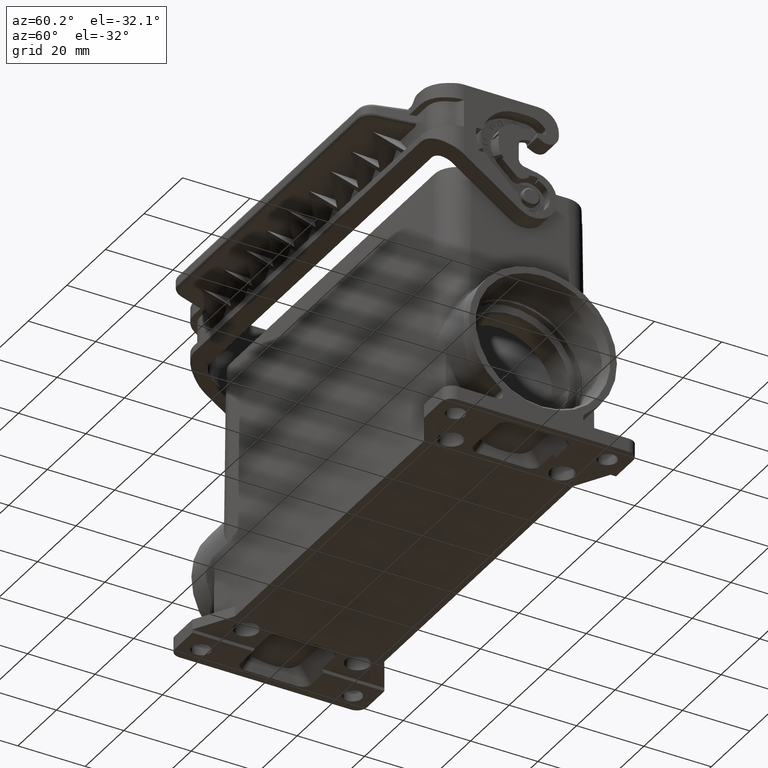
[diagram: clean part render]
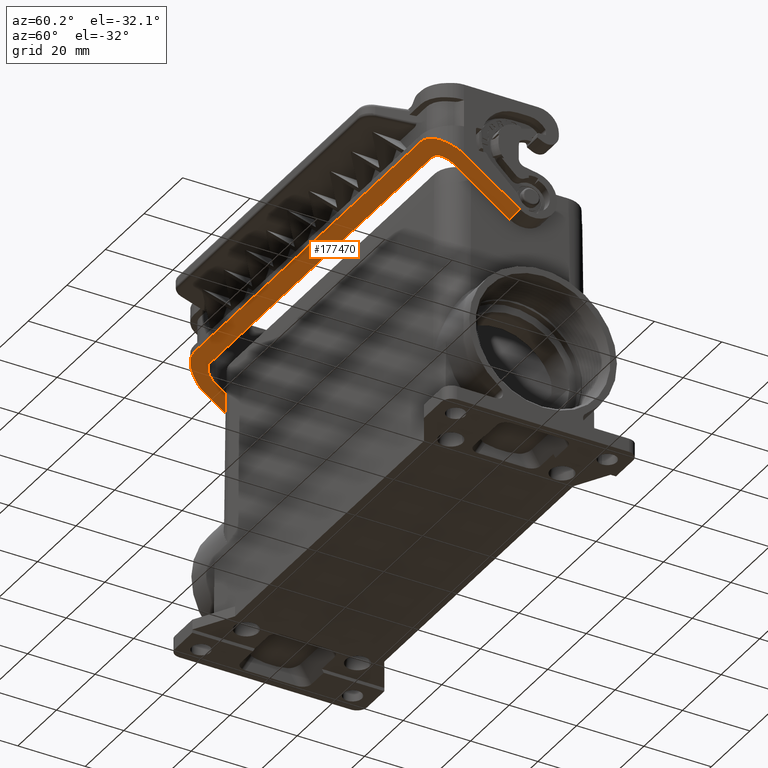
[diagram: same view with one face highlighted and labeled with its STEP entity id]
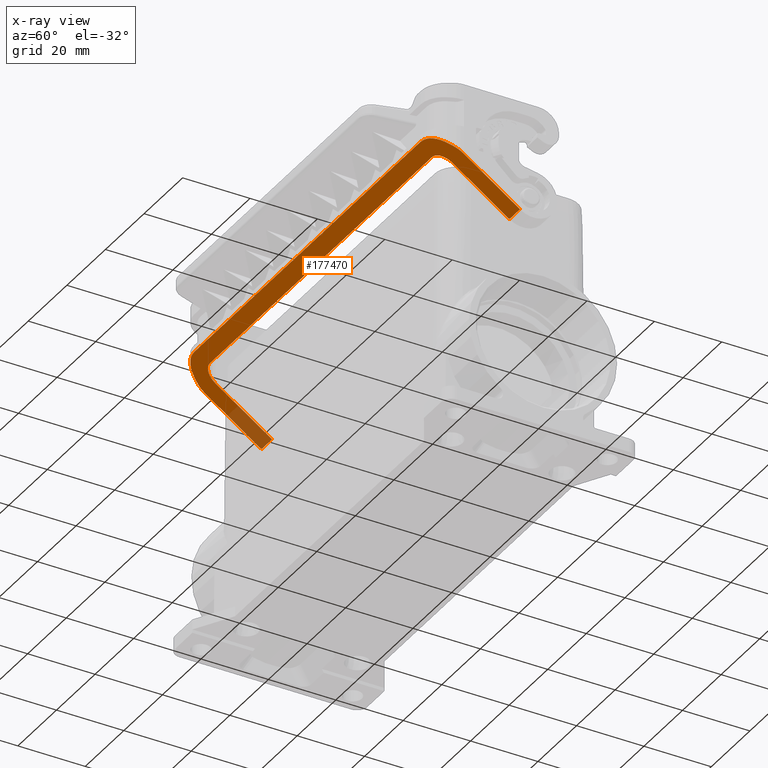
[diagram: x-ray of the same camera — body ghosted, the highlighted face saturated]
A machine part, auxiliary view. The second image highlights one B-rep face of the part: STEP entity #177470.
The next image is the same camera in x-ray: the body ghosted, the highlighted face saturated — about 8% of this face is hidden behind the body in this view.
In plain terms, the highlighted planar face has unit normal (-0, 0.5736, 0.8192).
Its self-contained STEP definition (entity closure, byte-faithful):
#33460=CARTESIAN_POINT('',(-1.18142200000013,44.1780974249612,
66.2659356899762));
#33470=VERTEX_POINT('',#33460);
#33500=CARTESIAN_POINT('',(-6.68142200000034,44.1780974249613,
66.2659356899763));
#33510=DIRECTION('',(1.,1.86243165512249E-16,1.90949043772848E-15));
#33520=VECTOR('',#33510,1.);
#33530=LINE('',#33500,#33520);
#33540=CARTESIAN_POINT('',(-6.68142200000013,44.1780974249612,
66.2659356899762));
#33550=VERTEX_POINT('',#33540);
#33560=EDGE_CURVE('',#33550,#33470,#33530,.T.);
#174630=CARTESIAN_POINT('',(-1.18142200000013,60.9130623705898,
77.9838842965775));
#174640=VERTEX_POINT('',#174630);
#174670=CARTESIAN_POINT('',(-1.18142200000041,-294.199861611934,
-170.668861991618));
#174680=DIRECTION('',(-6.11823375964389E-16,-0.819152044289056,
-0.573576436350954));
#174690=VECTOR('',#174680,1.);
#174700=LINE('',#174670,#174690);
#174710=EDGE_CURVE('',#174640,#33470,#174700,.T.);
#176220=CARTESIAN_POINT('',(58.5685780000001,44.1780974249612,
66.2659356899758));
#176230=DIRECTION('',(5.88254034551026E-16,-0.573576436350954,
0.819152044289056));
#176240=DIRECTION('',(-6.39260833162635E-16,-0.819152044289056,
-0.573576436350954));
#176250=AXIS2_PLACEMENT_3D('',#176220,#176230,#176240);
#176260=PLANE('',#176250);
#176270=CARTESIAN_POINT('',(-0.681422000000126,60.8053672160031,
77.9084753375072));
#176280=DIRECTION('',(5.88254034551026E-16,-0.573576436350954,
0.819152044289056));
#176290=DIRECTION('',(-6.39260833162634E-16,-0.819152044289056,
-0.573576436350954));
#176300=AXIS2_PLACEMENT_3D('',#176270,#176280,#176290);
#176310=ELLIPSE('',#176300,7.32464753256817,6.);
#176320=CARTESIAN_POINT('',(-5.87757442270676,63.8053672160031,
80.0090979521358));
#176330=VERTEX_POINT('',#176320);
#176340=CARTESIAN_POINT('',(-6.68142200000013,60.8053672160031,
77.9084753375072));
#176350=VERTEX_POINT('',#176340);
#176360=EDGE_CURVE('',#176330,#176350,#176310,.T.);
#176370=ORIENTED_EDGE('',*,*,#176360,.F.);
#176380=CARTESIAN_POINT('',(-6.68142200000042,-294.199861611934,
-170.668861991618));
#176390=DIRECTION('',(-6.39260833162635E-16,-0.819152044289056,
-0.573576436350954));
#176400=VECTOR('',#176390,1.);
#176410=LINE('',#176380,#176400);
#176420=EDGE_CURVE('',#176350,#33550,#176410,.T.);
#176430=ORIENTED_EDGE('',*,*,#176420,.F.);
#176440=ORIENTED_EDGE('',*,*,#33560,.F.);
#176450=ORIENTED_EDGE('',*,*,#174710,.T.);
#176460=CARTESIAN_POINT('',(2.81857799999987,60.91306237059,
77.9838842965775));
#176470=DIRECTION('',(5.88254034551026E-16,-0.573576436350954,
0.819152044289056));
#176480=DIRECTION('',(-6.39260833162606E-16,-0.819152044289056,
-0.573576436350954));
#176490=AXIS2_PLACEMENT_3D('',#176460,#176470,#176480);
#176500=ELLIPSE('',#176490,4.88309835504543,4.);
#176510=CARTESIAN_POINT('',(2.81857799999987,64.91306237059,
80.7847144494157));
#176520=VERTEX_POINT('',#176510);
#176530=EDGE_CURVE('',#176520,#174640,#176500,.T.);
#176540=ORIENTED_EDGE('',*,*,#176530,.T.);
#176550=CARTESIAN_POINT('',(116.068578,64.91306237059,80.7847144494156))
;
#176560=DIRECTION('',(-1.,-6.65601388780229E-31,7.18125577116239E-16));
#176570=VECTOR('',#176560,1.);
#176580=LINE('',#176550,#176570);
#176590=CARTESIAN_POINT('',(117.818578,64.91306237059,80.7847144494156))
;
#176600=VERTEX_POINT('',#176590);
#176610=EDGE_CURVE('',#176600,#176520,#176580,.T.);
#176620=ORIENTED_EDGE('',*,*,#176610,.T.);
#176630=CARTESIAN_POINT('',(117.818578,60.91306237059,77.9838842965775))
;
#176640=DIRECTION('',(5.88254034551026E-16,-0.573576436350954,
0.819152044289056));
#176650=DIRECTION('',(4.16920881182962E-15,-0.819152044289056,
-0.573576436350954));
#176660=AXIS2_PLACEMENT_3D('',#176630,#176640,#176650);
#176670=ELLIPSE('',#176660,4.88309835504543,4.);
#176680=CARTESIAN_POINT('',(121.818578,60.9130623705899,77.9838842965774
));
#176690=VERTEX_POINT('',#176680);
#176700=EDGE_CURVE('',#176690,#176600,#176670,.T.);
#176710=ORIENTED_EDGE('',*,*,#176700,.T.);
#176720=CARTESIAN_POINT('',(121.818578000001,-294.199861611934,
-170.668861991618));
#176730=DIRECTION('',(1.2203627330845E-15,-0.819152044289056,
-0.573576436350954));
#176740=VECTOR('',#176730,1.);
#176750=LINE('',#176720,#176740);
#176760=CARTESIAN_POINT('',(121.818578,44.1780974249614,66.2659356899764
));
#176770=VERTEX_POINT('',#176760);
#176780=EDGE_CURVE('',#176690,#176770,#176750,.T.);
#176790=ORIENTED_EDGE('',*,*,#176780,.F.);
#176800=CARTESIAN_POINT('',(127.318578,44.1780974249614,66.2659356899764
));
#176810=DIRECTION('',(-1.,1.86243165512253E-16,8.48534445547924E-16));
#176820=VECTOR('',#176810,1.);
#176830=LINE('',#176800,#176820);
#176840=CARTESIAN_POINT('',(127.318578,44.1780974249614,66.2659356899763
));
#176850=VERTEX_POINT('',#176840);
#176860=EDGE_CURVE('',#176850,#176770,#176830,.T.);
#176870=ORIENTED_EDGE('',*,*,#176860,.T.);
#176880=CARTESIAN_POINT('',(127.318578000001,-294.199861611934,
-170.668861991618));
#176890=DIRECTION('',(1.2203627330845E-15,-0.819152044289056,
-0.573576436350954));
#176900=VECTOR('',#176890,1.);
#176910=LINE('',#176880,#176900);
#176920=CARTESIAN_POINT('',(127.318578,60.8053672160031,77.9084753375071
));
#176930=VERTEX_POINT('',#176920);
#176940=EDGE_CURVE('',#176930,#176850,#176910,.T.);
#176950=ORIENTED_EDGE('',*,*,#176940,.T.);
#176960=CARTESIAN_POINT('',(121.318578,60.8053672160031,77.9084753375071
));
#176970=DIRECTION('',(5.88254034551026E-16,-0.573576436350954,
0.819152044289056));
#176980=DIRECTION('',(4.16920881182962E-15,-0.819152044289056,
-0.573576436350954));
#176990=AXIS2_PLACEMENT_3D('',#176960,#176970,#176980);
#177000=ELLIPSE('',#176990,7.32464753256817,6.);
#177010=CARTESIAN_POINT('',(126.514730422707,63.8053672160032,
80.0090979521358));
#177020=VERTEX_POINT('',#177010);
#177030=EDGE_CURVE('',#176930,#177020,#177000,.T.);
#177040=ORIENTED_EDGE('',*,*,#177030,.F.);
#177050=CARTESIAN_POINT('',(333.20914565781,-294.199861611934,
-170.668861991618));
#177060=DIRECTION('',(-0.427535056636465,0.740512440111194,
0.518512392703801));
#177070=VECTOR('',#177060,1.);
#177080=LINE('',#177050,#177070);
#177090=CARTESIAN_POINT('',(125.875202327026,64.91306237059,
80.7847144494158));
#177100=VERTEX_POINT('',#177090);
#177110=EDGE_CURVE('',#177020,#177100,#177080,.T.);
#177120=ORIENTED_EDGE('',*,*,#177110,.F.);
#177130=CARTESIAN_POINT('',(118.94699909675,60.91306237059,
77.9838842965775));
#177140=DIRECTION('',(5.88254034551026E-16,-0.573576436350954,
0.819152044289056));
#177150=DIRECTION('',(-6.39260833162639E-16,-0.819152044289056,
-0.573576436350954));
#177160=AXIS2_PLACEMENT_3D('',#177130,#177140,#177150);
#177170=ELLIPSE('',#177160,9.76619671009087,8.);
#177180=CARTESIAN_POINT('',(118.94699909675,68.91306237059,
83.5855446022538));
#177190=VERTEX_POINT('',#177180);
#177200=EDGE_CURVE('',#177100,#177190,#177170,.T.);
#177210=ORIENTED_EDGE('',*,*,#177200,.F.);
#177220=CARTESIAN_POINT('',(116.068578,68.91306237059,83.5855446022538))
;
#177230=DIRECTION('',(-1.,-7.14905195356542E-31,7.18125577116239E-16));
#177240=VECTOR('',#177230,1.);
#177250=LINE('',#177220,#177240);
#177260=CARTESIAN_POINT('',(1.6901569032495,68.9130623705899,
83.5855446022539));
#177270=VERTEX_POINT('',#177260);
#177280=EDGE_CURVE('',#177190,#177270,#177250,.T.);
#177290=ORIENTED_EDGE('',*,*,#177280,.F.);
#177300=CARTESIAN_POINT('',(1.6901569032495,60.9130623705899,
77.9838842965775));
#177310=DIRECTION('',(5.88254034551026E-16,-0.573576436350954,
0.819152044289056));
#177320=DIRECTION('',(4.16920881182965E-15,-0.819152044289056,
-0.573576436350954));
#177330=AXIS2_PLACEMENT_3D('',#177300,#177310,#177320);
#177340=ELLIPSE('',#177330,9.76619671009087,8.);
#177350=CARTESIAN_POINT('',(-5.23804632702601,64.9130623705899,
80.7847144494157));
#177360=VERTEX_POINT('',#177350);
#177370=EDGE_CURVE('',#177270,#177360,#177340,.T.);
#177380=ORIENTED_EDGE('',*,*,#177370,.F.);
#177390=CARTESIAN_POINT('',(-212.57198965781,-294.199861611934,
-170.668861991618));
#177400=DIRECTION('',(0.427535056636464,0.740512440111194,
0.5185123927038));
#177410=VECTOR('',#177400,1.);
#177420=LINE('',#177390,#177410);
#177430=EDGE_CURVE('',#176330,#177360,#177420,.T.);
#177440=ORIENTED_EDGE('',*,*,#177430,.T.);
#177450=EDGE_LOOP('',(#177440,#177380,#177290,#177210,#177120,#177040,
#176950,#176870,#176790,#176710,#176620,#176540,#176450,#176440,#176430,
#176370));
#177460=FACE_OUTER_BOUND('',#177450,.T.);
#177470=ADVANCED_FACE('',(#177460),#176260,.F.);